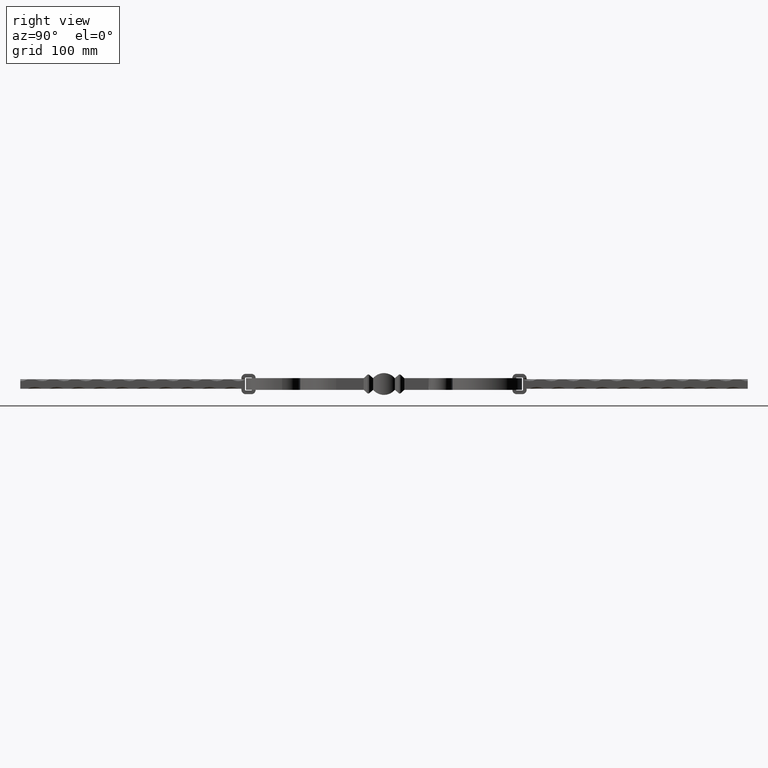
[diagram: clean part render]
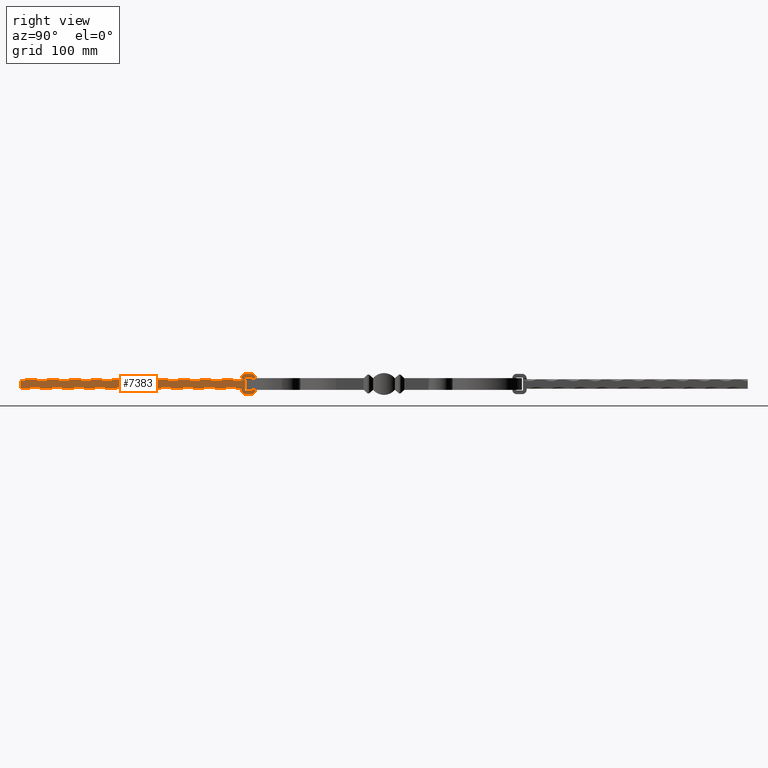
[diagram: same view with one face highlighted and labeled with its STEP entity id]
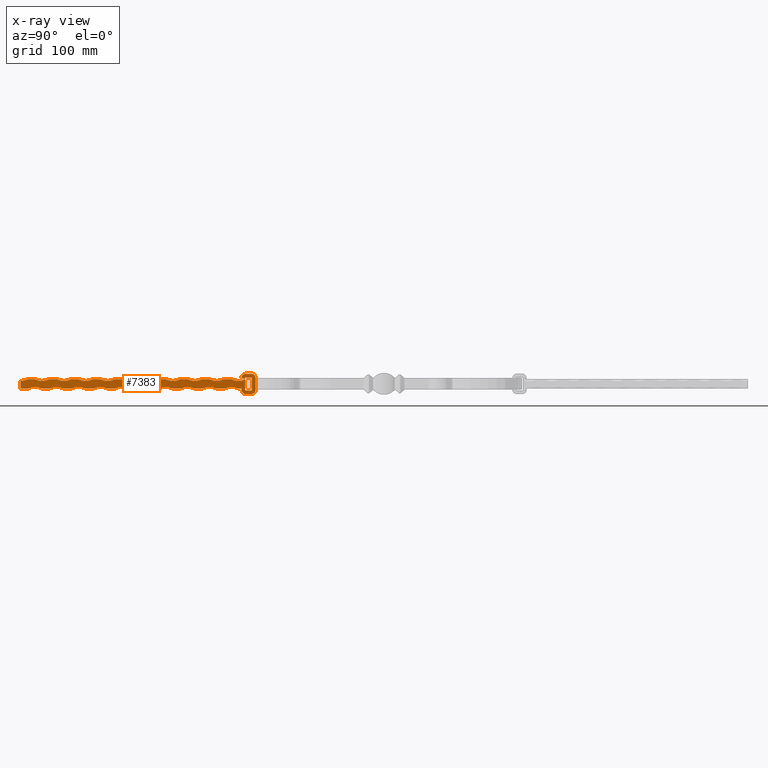
[diagram: x-ray of the same camera — body ghosted, the highlighted face saturated]
A machine part, right view. The second image highlights one B-rep face of the part: STEP entity #7383.
The next image is the same camera in x-ray: the body ghosted, the highlighted face saturated — about 0% of this face is hidden behind the body in this view.
In plain terms, the highlighted planar face has unit normal (1, 0, 0).
Its self-contained STEP definition (entity closure, byte-faithful):
#13 = EDGE_CURVE ( 'NONE', #17045, #5114, #5605, .T. ) ;
#35 = DIRECTION ( 'NONE',  ( 0.000000000000000000, 0.000000000000000000, -1.000000000000000000 ) ) ;
#87 = DIRECTION ( 'NONE',  ( -0.000000000000000000, 1.000000000000000000, -0.000000000000000000 ) ) ;
#95 = CIRCLE ( 'NONE', #11120, 21.25000000000003197 ) ;
#133 = EDGE_CURVE ( 'NONE', #16079, #325, #7344, .T. ) ;
#171 = CARTESIAN_POINT ( 'NONE',  ( 6.500000000000000888, -219.9999999999999716, 6.500000000000000888 ) ) ;
#203 = DIRECTION ( 'NONE',  ( 0.000000000000000000, 0.000000000000000000, -1.000000000000000000 ) ) ;
#234 = VERTEX_POINT ( 'NONE', #6979 ) ;
#283 = DIRECTION ( 'NONE',  ( 0.000000000000000000, 0.000000000000000000, -1.000000000000000000 ) ) ;
#325 = VERTEX_POINT ( 'NONE', #9972 ) ;
#344 = AXIS2_PLACEMENT_3D ( 'NONE', #17200, #12982, #203 ) ;
#448 = AXIS2_PLACEMENT_3D ( 'NONE', #16686, #2578, #11030 ) ;
#489 = EDGE_CURVE ( 'NONE', #14386, #7853, #11550, .T. ) ;
#531 = EDGE_CURVE ( 'NONE', #11298, #1722, #3411, .T. ) ;
#609 = PLANE ( 'NONE',  #14590 ) ;
#642 = ORIENTED_EDGE ( 'NONE', *, *, #12484, .T. ) ;
#720 = VECTOR ( 'NONE', #12941, 1000.000000000000000 ) ;
#724 = DIRECTION ( 'NONE',  ( 0.000000000000000000, 0.000000000000000000, -1.000000000000000000 ) ) ;
#798 = ORIENTED_EDGE ( 'NONE', *, *, #15753, .T. ) ;
#805 = CARTESIAN_POINT ( 'NONE',  ( 6.499999999999999112, -400.0000000000000000, -6.500000000000001776 ) ) ;
#845 = DIRECTION ( 'NONE',  ( 0.000000000000000000, 0.000000000000000000, -1.000000000000000000 ) ) ;
#859 = VECTOR ( 'NONE', #11815, 1000.000000000000000 ) ;
#969 = CARTESIAN_POINT ( 'NONE',  ( 6.500000000000000888, -199.9999999999999432, 25.25000000000002842 ) ) ;
#970 = CARTESIAN_POINT ( 'NONE',  ( 6.500000000000000000, -182.4038591061661805, -7.999999999999996447 ) ) ;
#979 = DIRECTION ( 'NONE',  ( -1.000000000000000000, -0.000000000000000000, -0.000000000000000000 ) ) ;
#1005 = EDGE_CURVE ( 'NONE', #234, #14254, #11531, .T. ) ;
#1026 = CARTESIAN_POINT ( 'NONE',  ( 6.500000000000000000, -190.0000000000000000, -7.999999999999996447 ) ) ;
#1031 = CARTESIAN_POINT ( 'NONE',  ( 6.500000000000000000, -191.0000000000000000, -7.999999999999996447 ) ) ;
#1035 = CARTESIAN_POINT ( 'NONE',  ( 6.500000000000000888, -290.0000000000000000, 25.25000000000002842 ) ) ;
#1046 = LINE ( 'NONE', #14495, #2365 ) ;
#1091 = EDGE_CURVE ( 'NONE', #8432, #17689, #11980, .T. ) ;
#1138 = LINE ( 'NONE', #15824, #4433 ) ;
#1168 = VERTEX_POINT ( 'NONE', #16078 ) ;
#1191 = VECTOR ( 'NONE', #9612, 1000.000000000000000 ) ;
#1212 = CARTESIAN_POINT ( 'NONE',  ( 6.499999999999999112, -439.9999999999999432, -6.500000000000001776 ) ) ;
#1225 = DIRECTION ( 'NONE',  ( -0.000000000000000000, 1.000000000000000000, -0.000000000000000000 ) ) ;
#1252 = CARTESIAN_POINT ( 'NONE',  ( 6.500000000000000000, -191.0000000000000000, -7.999999999999996447 ) ) ;
#1254 = EDGE_CURVE ( 'NONE', #6298, #11298, #2917, .T. ) ;
#1281 = DIRECTION ( 'NONE',  ( -1.000000000000000000, -0.000000000000000000, -0.000000000000000000 ) ) ;
#1298 = AXIS2_PLACEMENT_3D ( 'NONE', #10494, #13108, #14617 ) ;
#1318 = CARTESIAN_POINT ( 'NONE',  ( 6.500000000000000888, -279.9999999999999432, 6.500000000000000888 ) ) ;
#1356 = CARTESIAN_POINT ( 'NONE',  ( 6.500000000000000000, -196.0000000000000000, -6.499999999999999112 ) ) ;
#1384 = DIRECTION ( 'NONE',  ( -1.000000000000000000, -0.000000000000000000, -0.000000000000000000 ) ) ;
#1402 = VECTOR ( 'NONE', #6998, 1000.000000000000000 ) ;
#1431 = CIRCLE ( 'NONE', #15427, 21.25000000000003197 ) ;
#1435 = CARTESIAN_POINT ( 'NONE',  ( 6.500000000000000888, -339.9999999999999432, 6.500000000000000888 ) ) ;
#1449 = EDGE_CURVE ( 'NONE', #8432, #14254, #12648, .T. ) ;
#1475 = VERTEX_POINT ( 'NONE', #16818 ) ;
#1523 = EDGE_CURVE ( 'NONE', #8676, #1763, #2705, .T. ) ;
#1611 = EDGE_LOOP ( 'NONE', ( #13309, #6401, #5413, #2373, #12907, #14793, #642, #12937, #7532, #4774, #8860, #12151, #9654, #13095, #16212, #12329, #7815, #4599, #14968, #17665, #12158, #14941, #2393, #11781, #17215, #18000, #4907, #17334, #10276, #7272, #8463, #11679, #15737, #15053, #8181, #11391, #13188, #10351, #798, #8345, #15431, #17988, #15182, #2220, #8755, #5553, #10575, #5005, #11780, #10689, #6913, #11741, #7497, #17813, #2573, #7607, #10622, #17034, #5172, #11934, #12679 ) ) ;
#1690 = CARTESIAN_POINT ( 'NONE',  ( 6.499999999999999112, -219.9999999999999716, -6.500000000000001776 ) ) ;
#1722 = VERTEX_POINT ( 'NONE', #15727 ) ;
#1737 = CARTESIAN_POINT ( 'NONE',  ( 6.500000000000000888, -459.9999999999999432, 6.500000000000000888 ) ) ;
#1742 = CARTESIAN_POINT ( 'NONE',  ( 6.499999999999999112, -300.0000000000000000, -25.25000000000003908 ) ) ;
#1758 = EDGE_CURVE ( 'NONE', #4401, #9885, #5786, .T. ) ;
#1763 = VERTEX_POINT ( 'NONE', #13971 ) ;
#1775 = VERTEX_POINT ( 'NONE', #14037 ) ;
#1779 = CARTESIAN_POINT ( 'NONE',  ( 6.500000000000000000, -196.0000000000000000, -7.999999999999994671 ) ) ;
#1852 = CARTESIAN_POINT ( 'NONE',  ( 6.500000000000000000, -182.4038591061661805, -14.00000000000000178 ) ) ;
#1861 = EDGE_CURVE ( 'NONE', #16717, #11089, #17296, .T. ) ;
#1965 = CARTESIAN_POINT ( 'NONE',  ( 6.500000000000000888, -500.0000000000000000, 6.500000000000000888 ) ) ;
#2018 = VECTOR ( 'NONE', #18318, 1000.000000000000000 ) ;
#2032 = CARTESIAN_POINT ( 'NONE',  ( 6.499999999999999112, -500.0000000000000000, -6.499999999999999112 ) ) ;
#2046 = LINE ( 'NONE', #13170, #2700 ) ;
#2115 = CIRCLE ( 'NONE', #344, 1.000000000000000888 ) ;
#2153 = CARTESIAN_POINT ( 'NONE',  ( 6.499999999999999112, -209.9999999999999716, -25.25000000000003908 ) ) ;
#2180 = VECTOR ( 'NONE', #3508, 1000.000000000000000 ) ;
#2208 = CARTESIAN_POINT ( 'NONE',  ( 6.500000000000000888, -195.9684936844944332, 8.614070955305894728 ) ) ;
#2220 = ORIENTED_EDGE ( 'NONE', *, *, #2441, .F. ) ;
#2250 = DIRECTION ( 'NONE',  ( 0.000000000000000000, 0.000000000000000000, -1.000000000000000000 ) ) ;
#2268 = DIRECTION ( 'NONE',  ( 0.000000000000000000, 0.000000000000000000, -1.000000000000000000 ) ) ;
#2324 = EDGE_CURVE ( 'NONE', #6621, #1475, #12381, .T. ) ;
#2365 = VECTOR ( 'NONE', #11722, 1000.000000000000000 ) ;
#2373 = ORIENTED_EDGE ( 'NONE', *, *, #12468, .F. ) ;
#2390 = DIRECTION ( 'NONE',  ( 0.000000000000000000, 0.000000000000000000, -1.000000000000000000 ) ) ;
#2393 = ORIENTED_EDGE ( 'NONE', *, *, #2863, .T. ) ;
#2441 = EDGE_CURVE ( 'NONE', #18238, #9808, #10846, .T. ) ;
#2469 = CARTESIAN_POINT ( 'NONE',  ( 6.500000000000000888, -500.0000000000000000, 6.500000000000000888 ) ) ;
#2483 = EDGE_CURVE ( 'NONE', #17567, #14969, #1138, .T. ) ;
#2573 = ORIENTED_EDGE ( 'NONE', *, *, #13491, .T. ) ;
#2578 = DIRECTION ( 'NONE',  ( -1.000000000000000000, -0.000000000000000000, -0.000000000000000000 ) ) ;
#2601 = DIRECTION ( 'NONE',  ( -1.000000000000000000, -0.000000000000000000, -0.000000000000000000 ) ) ;
#2689 = CARTESIAN_POINT ( 'NONE',  ( 6.499999999999999112, -500.0000000000000000, -6.499999999999999112 ) ) ;
#2700 = VECTOR ( 'NONE', #11976, 1000.000000000000000 ) ;
#2705 = CIRCLE ( 'NONE', #448, 21.25000000000003197 ) ;
#2714 = AXIS2_PLACEMENT_3D ( 'NONE', #14203, #9958, #6736 ) ;
#2836 = EDGE_CURVE ( 'NONE', #11089, #5912, #9938, .T. ) ;
#2856 = VERTEX_POINT ( 'NONE', #16791 ) ;
#2863 = EDGE_CURVE ( 'NONE', #15268, #1775, #8394, .T. ) ;
#2897 = AXIS2_PLACEMENT_3D ( 'NONE', #970, #14952, #7865 ) ;
#2899 = FACE_OUTER_BOUND ( 'NONE', #1611, .T. ) ;
#2917 = CIRCLE ( 'NONE', #2897, 6.000000000000005329 ) ;
#2930 = VERTEX_POINT ( 'NONE', #5705 ) ;
#3008 = DIRECTION ( 'NONE',  ( -0.000000000000000000, 1.000000000000000000, -0.000000000000000000 ) ) ;
#3044 = AXIS2_PLACEMENT_3D ( 'NONE', #9271, #3847, #13749 ) ;
#3088 = DIRECTION ( 'NONE',  ( 0.000000000000000000, 0.000000000000000000, -1.000000000000000000 ) ) ;
#3116 = VERTEX_POINT ( 'NONE', #4893 ) ;
#3121 = CARTESIAN_POINT ( 'NONE',  ( 6.500000000000000888, -300.0000000000000000, 6.500000000000000888 ) ) ;
#3151 = EDGE_CURVE ( 'NONE', #13130, #11223, #11480, .T. ) ;
#3160 = VECTOR ( 'NONE', #5930, 1000.000000000000000 ) ;
#3222 = VERTEX_POINT ( 'NONE', #5132 ) ;
#3245 = DIRECTION ( 'NONE',  ( -0.000000000000000000, 1.000000000000000000, -0.000000000000000000 ) ) ;
#3258 = DIRECTION ( 'NONE',  ( -0.000000000000000000, 1.000000000000000000, -0.000000000000000000 ) ) ;
#3266 = AXIS2_PLACEMENT_3D ( 'NONE', #8237, #18260, #12640 ) ;
#3278 = LINE ( 'NONE', #15966, #17429 ) ;
#3411 = LINE ( 'NONE', #1852, #14255 ) ;
#3445 = CARTESIAN_POINT ( 'NONE',  ( 6.499999999999999112, -459.9999999999999432, -6.500000000000001776 ) ) ;
#3504 = CARTESIAN_POINT ( 'NONE',  ( 6.500000000000000000, -190.0000000000000000, 9.000000000000001776 ) ) ;
#3508 = DIRECTION ( 'NONE',  ( -0.000000000000000000, 1.000000000000000000, -0.000000000000000000 ) ) ;
#3549 = EDGE_CURVE ( 'NONE', #1722, #18238, #4625, .T. ) ;
#3629 = CIRCLE ( 'NONE', #6249, 21.25000000000003197 ) ;
#3708 = LINE ( 'NONE', #2032, #2180 ) ;
#3741 = CARTESIAN_POINT ( 'NONE',  ( 6.500000000000000888, -240.0000000000000000, 6.500000000000000888 ) ) ;
#3820 = CIRCLE ( 'NONE', #11248, 21.25000000000003553 ) ;
#3847 = DIRECTION ( 'NONE',  ( -1.000000000000000000, -0.000000000000000000, -0.000000000000000000 ) ) ;
#3906 = EDGE_CURVE ( 'NONE', #16709, #12035, #5734, .T. ) ;
#3988 = CARTESIAN_POINT ( 'NONE',  ( 6.500000000000000000, -176.4038591061661805, 8.000000000000000000 ) ) ;
#4023 = CARTESIAN_POINT ( 'NONE',  ( 6.500000000000000000, -182.4038591061661805, 13.99999999999999822 ) ) ;
#4027 = EDGE_CURVE ( 'NONE', #4401, #4323, #12575, .T. ) ;
#4036 = CIRCLE ( 'NONE', #15797, 21.25000000000003553 ) ;
#4052 = DIRECTION ( 'NONE',  ( -1.000000000000000000, -0.000000000000000000, -0.000000000000000000 ) ) ;
#4152 = CARTESIAN_POINT ( 'NONE',  ( 6.500000000000000000, -196.0000000000000000, -7.999999999999994671 ) ) ;
#4158 = DIRECTION ( 'NONE',  ( -0.000000000000000000, 1.000000000000000000, -0.000000000000000000 ) ) ;
#4280 = VECTOR ( 'NONE', #11998, 1000.000000000000000 ) ;
#4323 = VERTEX_POINT ( 'NONE', #5503 ) ;
#4353 = CARTESIAN_POINT ( 'NONE',  ( 6.499999999999999112, -500.0000000000000000, -6.499999999999999112 ) ) ;
#4401 = VERTEX_POINT ( 'NONE', #8272 ) ;
#4416 = CARTESIAN_POINT ( 'NONE',  ( 6.500000000000000888, -191.0000000000000000, 5.999999999999970690 ) ) ;
#4433 = VECTOR ( 'NONE', #3245, 1000.000000000000000 ) ;
#4532 = VERTEX_POINT ( 'NONE', #4629 ) ;
#4548 = DIRECTION ( 'NONE',  ( -1.000000000000000000, -0.000000000000000000, -0.000000000000000000 ) ) ;
#4570 = LINE ( 'NONE', #14580, #17647 ) ;
#4599 = ORIENTED_EDGE ( 'NONE', *, *, #7763, .F. ) ;
#4625 = CIRCLE ( 'NONE', #9887, 6.000000000000003553 ) ;
#4629 = CARTESIAN_POINT ( 'NONE',  ( 6.499999999999999112, -260.0000000000000000, -6.500000000000001776 ) ) ;
#4725 = DIRECTION ( 'NONE',  ( 0.000000000000000000, 0.000000000000000000, -1.000000000000000000 ) ) ;
#4774 = ORIENTED_EDGE ( 'NONE', *, *, #1091, .F. ) ;
#4776 = VERTEX_POINT ( 'NONE', #9727 ) ;
#4794 = VERTEX_POINT ( 'NONE', #3988 ) ;
#4842 = CARTESIAN_POINT ( 'NONE',  ( 6.499999999999999112, -449.9999999999999432, -25.25000000000003908 ) ) ;
#4893 = CARTESIAN_POINT ( 'NONE',  ( 6.499999999999999112, -430.0000000000000000, -6.500000000000001776 ) ) ;
#4907 = ORIENTED_EDGE ( 'NONE', *, *, #13805, .T. ) ;
#4910 = DIRECTION ( 'NONE',  ( 0.000000000000000000, -1.000000000000000000, -2.283690495242095148E-16 ) ) ;
#4949 = DIRECTION ( 'NONE',  ( -1.000000000000000000, -0.000000000000000000, -0.000000000000000000 ) ) ;
#5005 = ORIENTED_EDGE ( 'NONE', *, *, #7362, .F. ) ;
#5058 = DIRECTION ( 'NONE',  ( -0.000000000000000000, 1.000000000000000000, -0.000000000000000000 ) ) ;
#5091 = EDGE_CURVE ( 'NONE', #12035, #15497, #11431, .T. ) ;
#5114 = VERTEX_POINT ( 'NONE', #14596 ) ;
#5118 = DIRECTION ( 'NONE',  ( -1.000000000000000000, -0.000000000000000000, -0.000000000000000000 ) ) ;
#5132 = CARTESIAN_POINT ( 'NONE',  ( 6.500000000000000000, -190.0000000000000000, 14.00000000000000533 ) ) ;
#5157 = DIRECTION ( 'NONE',  ( -1.000000000000000000, -0.000000000000000000, -0.000000000000000000 ) ) ;
#5172 = ORIENTED_EDGE ( 'NONE', *, *, #489, .T. ) ;
#5281 = DIRECTION ( 'NONE',  ( -1.000000000000000000, -0.000000000000000000, -0.000000000000000000 ) ) ;
#5413 = ORIENTED_EDGE ( 'NONE', *, *, #14605, .T. ) ;
#5462 = DIRECTION ( 'NONE',  ( 0.000000000000000000, 0.000000000000000000, -1.000000000000000000 ) ) ;
#5502 = EDGE_CURVE ( 'NONE', #5516, #10519, #4570, .T. ) ;
#5503 = CARTESIAN_POINT ( 'NONE',  ( 6.500000000000000888, -420.0000000000000000, 6.500000000000000888 ) ) ;
#5515 = AXIS2_PLACEMENT_3D ( 'NONE', #10557, #1281, #11277 ) ;
#5516 = VERTEX_POINT ( 'NONE', #13137 ) ;
#5553 = ORIENTED_EDGE ( 'NONE', *, *, #531, .F. ) ;
#5605 = CIRCLE ( 'NONE', #6418, 1.000000000000000888 ) ;
#5607 = VECTOR ( 'NONE', #17464, 1000.000000000000000 ) ;
#5618 = DIRECTION ( 'NONE',  ( 0.000000000000000000, 0.000000000000000000, -1.000000000000000000 ) ) ;
#5628 = LINE ( 'NONE', #2469, #6058 ) ;
#5630 = CARTESIAN_POINT ( 'NONE',  ( 6.499999999999999112, -370.0000000000000000, -6.500000000000001776 ) ) ;
#5664 = CIRCLE ( 'NONE', #17841, 21.25000000000003197 ) ;
#5689 = VERTEX_POINT ( 'NONE', #3445 ) ;
#5695 = CIRCLE ( 'NONE', #17372, 21.25000000000003553 ) ;
#5705 = CARTESIAN_POINT ( 'NONE',  ( 6.499999999999999112, -410.0000000000000000, -6.500000000000001776 ) ) ;
#5730 = DIRECTION ( 'NONE',  ( 0.000000000000000000, 0.000000000000000000, -1.000000000000000000 ) ) ;
#5734 = LINE ( 'NONE', #4353, #9683 ) ;
#5774 = CARTESIAN_POINT ( 'NONE',  ( 6.500000000000000000, -191.0000000000000000, -7.999999999999996447 ) ) ;
#5782 = DIRECTION ( 'NONE',  ( 0.000000000000000000, 0.000000000000000000, -1.000000000000000000 ) ) ;
#5786 = CIRCLE ( 'NONE', #9998, 21.25000000000003197 ) ;
#5798 = AXIS2_PLACEMENT_3D ( 'NONE', #8740, #10156, #8682 ) ;
#5800 = DIRECTION ( 'NONE',  ( -1.000000000000000000, -0.000000000000000000, -0.000000000000000000 ) ) ;
#5859 = EDGE_CURVE ( 'NONE', #1475, #9808, #11619, .T. ) ;
#5865 = CARTESIAN_POINT ( 'NONE',  ( 6.499999999999999112, -290.0000000000000000, -6.500000000000001776 ) ) ;
#5902 = CARTESIAN_POINT ( 'NONE',  ( 6.500000000000000888, -449.9999999999999432, 6.500000000000000888 ) ) ;
#5912 = VERTEX_POINT ( 'NONE', #17268 ) ;
#5930 = DIRECTION ( 'NONE',  ( -0.000000000000000000, 1.000000000000000000, -0.000000000000000000 ) ) ;
#6058 = VECTOR ( 'NONE', #10859, 1000.000000000000000 ) ;
#6119 = EDGE_CURVE ( 'NONE', #12271, #4794, #9401, .T. ) ;
#6139 = CARTESIAN_POINT ( 'NONE',  ( 6.500000000000000000, -182.4038591061661805, 7.999999999999998224 ) ) ;
#6249 = AXIS2_PLACEMENT_3D ( 'NONE', #8354, #16676, #18143 ) ;
#6269 = DIRECTION ( 'NONE',  ( 0.000000000000000000, -1.000000000000000000, 4.567380990484190297E-16 ) ) ;
#6298 = VERTEX_POINT ( 'NONE', #14929 ) ;
#6315 = CARTESIAN_POINT ( 'NONE',  ( 6.499999999999999112, -500.0000000000000000, -6.499999999999999112 ) ) ;
#6401 = ORIENTED_EDGE ( 'NONE', *, *, #11160, .F. ) ;
#6418 = AXIS2_PLACEMENT_3D ( 'NONE', #12684, #15432, #35 ) ;
#6427 = LINE ( 'NONE', #5774, #16189 ) ;
#6463 = EDGE_CURVE ( 'NONE', #234, #10519, #7189, .T. ) ;
#6473 = LINE ( 'NONE', #6315, #4280 ) ;
#6569 = CARTESIAN_POINT ( 'NONE',  ( 6.500000000000000888, -229.9999999999999716, 25.25000000000002842 ) ) ;
#6579 = VERTEX_POINT ( 'NONE', #1318 ) ;
#6585 = AXIS2_PLACEMENT_3D ( 'NONE', #1742, #4548, #15904 ) ;
#6621 = VERTEX_POINT ( 'NONE', #1690 ) ;
#6628 = CARTESIAN_POINT ( 'NONE',  ( 6.500000000000000000, -182.4038591061661805, 9.000000000000001776 ) ) ;
#6632 = VECTOR ( 'NONE', #15369, 1000.000000000000000 ) ;
#6736 = DIRECTION ( 'NONE',  ( 0.000000000000000000, 0.000000000000000000, -1.000000000000000000 ) ) ;
#6913 = ORIENTED_EDGE ( 'NONE', *, *, #14336, .F. ) ;
#6942 = CARTESIAN_POINT ( 'NONE',  ( 6.499999999999999112, -500.0000000000000000, -6.499999999999999112 ) ) ;
#6979 = CARTESIAN_POINT ( 'NONE',  ( 6.500000000000000888, -370.0000000000000000, 6.500000000000000888 ) ) ;
#6998 = DIRECTION ( 'NONE',  ( -0.000000000000000000, 1.000000000000000000, -0.000000000000000000 ) ) ;
#7072 = AXIS2_PLACEMENT_3D ( 'NONE', #15109, #2601, #9867 ) ;
#7147 = EDGE_CURVE ( 'NONE', #14277, #16717, #11467, .T. ) ;
#7189 = CIRCLE ( 'NONE', #7072, 21.25000000000003197 ) ;
#7255 = CARTESIAN_POINT ( 'NONE',  ( 6.499999999999999112, -380.0000000000000000, -6.500000000000001776 ) ) ;
#7272 = ORIENTED_EDGE ( 'NONE', *, *, #9800, .T. ) ;
#7344 = CIRCLE ( 'NONE', #10322, 1.000000000000001776 ) ;
#7359 = VERTEX_POINT ( 'NONE', #9041 ) ;
#7362 = EDGE_CURVE ( 'NONE', #4794, #6298, #7954, .T. ) ;
#7383 = ADVANCED_FACE ( 'NONE', ( #2899 ), #609, .T. ) ;
#7497 = ORIENTED_EDGE ( 'NONE', *, *, #17314, .T. ) ;
#7521 = EDGE_CURVE ( 'NONE', #325, #14434, #16844, .T. ) ;
#7532 = ORIENTED_EDGE ( 'NONE', *, *, #11452, .T. ) ;
#7557 = LINE ( 'NONE', #8540, #720 ) ;
#7607 = ORIENTED_EDGE ( 'NONE', *, *, #133, .T. ) ;
#7715 = VECTOR ( 'NONE', #3008, 1000.000000000000000 ) ;
#7749 = DIRECTION ( 'NONE',  ( -1.000000000000000000, -0.000000000000000000, -0.000000000000000000 ) ) ;
#7763 = EDGE_CURVE ( 'NONE', #13130, #9885, #12835, .T. ) ;
#7815 = ORIENTED_EDGE ( 'NONE', *, *, #1758, .T. ) ;
#7853 = VERTEX_POINT ( 'NONE', #15105 ) ;
#7865 = DIRECTION ( 'NONE',  ( 0.000000000000000000, 0.000000000000000000, -1.000000000000000000 ) ) ;
#7870 = CARTESIAN_POINT ( 'NONE',  ( 6.500000000000000888, -500.0000000000000000, 4.000000000000017764 ) ) ;
#7954 = LINE ( 'NONE', #17469, #10400 ) ;
#8096 = DIRECTION ( 'NONE',  ( -0.000000000000000000, 1.000000000000000000, -0.000000000000000000 ) ) ;
#8181 = ORIENTED_EDGE ( 'NONE', *, *, #3906, .T. ) ;
#8200 = LINE ( 'NONE', #6942, #1402 ) ;
#8237 = CARTESIAN_POINT ( 'NONE',  ( 6.499999999999999112, -420.0000000000000000, -25.25000000000003908 ) ) ;
#8255 = VECTOR ( 'NONE', #87, 1000.000000000000000 ) ;
#8267 = VECTOR ( 'NONE', #5058, 1000.000000000000000 ) ;
#8272 = CARTESIAN_POINT ( 'NONE',  ( 6.500000000000000888, -429.9999999999999432, 6.500000000000000888 ) ) ;
#8301 = LINE ( 'NONE', #16812, #13627 ) ;
#8345 = ORIENTED_EDGE ( 'NONE', *, *, #15470, .T. ) ;
#8354 = CARTESIAN_POINT ( 'NONE',  ( 6.499999999999992895, -500.0000000000000000, 25.25000000000004974 ) ) ;
#8394 = LINE ( 'NONE', #14197, #2018 ) ;
#8432 = VERTEX_POINT ( 'NONE', #1435 ) ;
#8457 = AXIS2_PLACEMENT_3D ( 'NONE', #13599, #5118, #15038 ) ;
#8463 = ORIENTED_EDGE ( 'NONE', *, *, #7147, .T. ) ;
#8540 = CARTESIAN_POINT ( 'NONE',  ( 6.499999999999999112, -500.0000000000000000, -6.499999999999999112 ) ) ;
#8676 = VERTEX_POINT ( 'NONE', #2208 ) ;
#8682 = DIRECTION ( 'NONE',  ( 0.000000000000000000, 0.000000000000000000, -1.000000000000000000 ) ) ;
#8740 = CARTESIAN_POINT ( 'NONE',  ( 6.499999999999999112, -329.9999999999999432, -25.25000000000003908 ) ) ;
#8755 = ORIENTED_EDGE ( 'NONE', *, *, #3549, .F. ) ;
#8860 = ORIENTED_EDGE ( 'NONE', *, *, #1449, .T. ) ;
#9041 = CARTESIAN_POINT ( 'NONE',  ( 6.500000000000000888, -209.9999999999999716, 6.500000000000000888 ) ) ;
#9271 = CARTESIAN_POINT ( 'NONE',  ( 6.500000000000000888, -410.0000000000000000, 25.25000000000002842 ) ) ;
#9303 = CARTESIAN_POINT ( 'NONE',  ( 6.500000000000000000, -182.4038591061661805, -14.00000000000000178 ) ) ;
#9401 = CIRCLE ( 'NONE', #2714, 6.000000000000002665 ) ;
#9456 = DIRECTION ( 'NONE',  ( 1.000000000000000000, 0.000000000000000000, 0.000000000000000000 ) ) ;
#9504 = DIRECTION ( 'NONE',  ( -1.000000000000000000, -0.000000000000000000, -0.000000000000000000 ) ) ;
#9515 = CARTESIAN_POINT ( 'NONE',  ( 6.499999999999999112, -500.0000000000000000, -6.499999999999999112 ) ) ;
#9612 = DIRECTION ( 'NONE',  ( 0.000000000000000000, 0.000000000000000000, 1.000000000000000000 ) ) ;
#9654 = ORIENTED_EDGE ( 'NONE', *, *, #6463, .T. ) ;
#9683 = VECTOR ( 'NONE', #9839, 1000.000000000000000 ) ;
#9727 = CARTESIAN_POINT ( 'NONE',  ( 6.500000000000000888, -249.9999999999999716, 6.500000000000000888 ) ) ;
#9774 = VERTEX_POINT ( 'NONE', #171 ) ;
#9791 = VERTEX_POINT ( 'NONE', #4416 ) ;
#9800 = EDGE_CURVE ( 'NONE', #13996, #14277, #5695, .T. ) ;
#9808 = VERTEX_POINT ( 'NONE', #1356 ) ;
#9839 = DIRECTION ( 'NONE',  ( -0.000000000000000000, 1.000000000000000000, -0.000000000000000000 ) ) ;
#9867 = DIRECTION ( 'NONE',  ( 0.000000000000000000, 0.000000000000000000, -1.000000000000000000 ) ) ;
#9885 = VERTEX_POINT ( 'NONE', #5902 ) ;
#9887 = AXIS2_PLACEMENT_3D ( 'NONE', #11596, #10173, #10106 ) ;
#9916 = CARTESIAN_POINT ( 'NONE',  ( 6.500000000000000888, -319.9999999999999432, 25.25000000000002842 ) ) ;
#9938 = LINE ( 'NONE', #2689, #15962 ) ;
#9958 = DIRECTION ( 'NONE',  ( -1.000000000000000000, -0.000000000000000000, -0.000000000000000000 ) ) ;
#9964 = EDGE_CURVE ( 'NONE', #5689, #18136, #14804, .T. ) ;
#9972 = CARTESIAN_POINT ( 'NONE',  ( 6.500000000000000000, -181.4038591061661805, 7.999999999999996447 ) ) ;
#9998 = AXIS2_PLACEMENT_3D ( 'NONE', #16880, #1384, #5618 ) ;
#10026 = DIRECTION ( 'NONE',  ( -1.000000000000000000, -0.000000000000000000, -0.000000000000000000 ) ) ;
#10033 = EDGE_CURVE ( 'NONE', #14676, #6621, #3708, .T. ) ;
#10106 = DIRECTION ( 'NONE',  ( 0.000000000000000000, 0.000000000000000000, -1.000000000000000000 ) ) ;
#10113 = EDGE_CURVE ( 'NONE', #5516, #4323, #14568, .T. ) ;
#10119 = CARTESIAN_POINT ( 'NONE',  ( 6.499999999999999112, -500.0000000000000000, -6.499999999999999112 ) ) ;
#10156 = DIRECTION ( 'NONE',  ( -1.000000000000000000, -0.000000000000000000, -0.000000000000000000 ) ) ;
#10173 = DIRECTION ( 'NONE',  ( -1.000000000000000000, -0.000000000000000000, -0.000000000000000000 ) ) ;
#10239 = AXIS2_PLACEMENT_3D ( 'NONE', #2153, #4052, #5462 ) ;
#10258 = CARTESIAN_POINT ( 'NONE',  ( 6.499999999999999112, -310.0000000000000000, -6.500000000000001776 ) ) ;
#10276 = ORIENTED_EDGE ( 'NONE', *, *, #13608, .T. ) ;
#10278 = EDGE_CURVE ( 'NONE', #18182, #11223, #3278, .T. ) ;
#10322 = AXIS2_PLACEMENT_3D ( 'NONE', #6139, #7749, #724 ) ;
#10351 = ORIENTED_EDGE ( 'NONE', *, *, #11790, .T. ) ;
#10400 = VECTOR ( 'NONE', #17536, 1000.000000000000000 ) ;
#10494 = CARTESIAN_POINT ( 'NONE',  ( 6.500000000000000888, -260.0000000000000000, 25.25000000000002842 ) ) ;
#10519 = VERTEX_POINT ( 'NONE', #11446 ) ;
#10557 = CARTESIAN_POINT ( 'NONE',  ( 6.499999999999999112, -360.0000000000000000, -25.25000000000003908 ) ) ;
#10575 = ORIENTED_EDGE ( 'NONE', *, *, #1254, .F. ) ;
#10622 = ORIENTED_EDGE ( 'NONE', *, *, #7521, .T. ) ;
#10649 = DIRECTION ( 'NONE',  ( 0.000000000000000000, 0.000000000000000000, -1.000000000000000000 ) ) ;
#10658 = CARTESIAN_POINT ( 'NONE',  ( 6.500000000000000000, -182.4038591061661805, -7.999999999999996447 ) ) ;
#10689 = ORIENTED_EDGE ( 'NONE', *, *, #11510, .F. ) ;
#10846 = LINE ( 'NONE', #1779, #14196 ) ;
#10859 = DIRECTION ( 'NONE',  ( -0.000000000000000000, 1.000000000000000000, -0.000000000000000000 ) ) ;
#10883 = CARTESIAN_POINT ( 'NONE',  ( 6.499999999999992895, -490.0000000000000000, 6.500000000000018652 ) ) ;
#10932 = CIRCLE ( 'NONE', #1298, 21.25000000000003197 ) ;
#11026 = CARTESIAN_POINT ( 'NONE',  ( 6.499999999999999112, -229.9999999999999716, -6.500000000000001776 ) ) ;
#11030 = DIRECTION ( 'NONE',  ( 0.000000000000000000, 0.000000000000000000, -1.000000000000000000 ) ) ;
#11089 = VERTEX_POINT ( 'NONE', #11369 ) ;
#11120 = AXIS2_PLACEMENT_3D ( 'NONE', #6569, #5281, #2390 ) ;
#11160 = EDGE_CURVE ( 'NONE', #9774, #7359, #1046, .T. ) ;
#11177 = CARTESIAN_POINT ( 'NONE',  ( 6.499999999999999112, -500.0000000000000000, -6.499999999999999112 ) ) ;
#11223 = VERTEX_POINT ( 'NONE', #14736 ) ;
#11248 = AXIS2_PLACEMENT_3D ( 'NONE', #17869, #9504, #2250 ) ;
#11277 = DIRECTION ( 'NONE',  ( 0.000000000000000000, 0.000000000000000000, -1.000000000000000000 ) ) ;
#11298 = VERTEX_POINT ( 'NONE', #9303 ) ;
#11369 = CARTESIAN_POINT ( 'NONE',  ( 6.499999999999999112, -350.0000000000000000, -6.500000000000001776 ) ) ;
#11391 = ORIENTED_EDGE ( 'NONE', *, *, #5091, .T. ) ;
#11431 = CIRCLE ( 'NONE', #6585, 21.25000000000003553 ) ;
#11446 = CARTESIAN_POINT ( 'NONE',  ( 6.500000000000000888, -390.0000000000000000, 6.500000000000000888 ) ) ;
#11452 = EDGE_CURVE ( 'NONE', #17567, #17689, #5664, .T. ) ;
#11467 = LINE ( 'NONE', #15771, #7715 ) ;
#11480 = CIRCLE ( 'NONE', #12031, 21.25000000000003197 ) ;
#11510 = EDGE_CURVE ( 'NONE', #3222, #12271, #8301, .T. ) ;
#11531 = LINE ( 'NONE', #17137, #3160 ) ;
#11550 = LINE ( 'NONE', #17475, #14700 ) ;
#11584 = CARTESIAN_POINT ( 'NONE',  ( 6.500000000000000000, -190.0000000000000000, 8.000000000000000000 ) ) ;
#11596 = CARTESIAN_POINT ( 'NONE',  ( 6.500000000000000000, -190.0000000000000000, -7.999999999999996447 ) ) ;
#11619 = LINE ( 'NONE', #9515, #15210 ) ;
#11679 = ORIENTED_EDGE ( 'NONE', *, *, #1861, .T. ) ;
#11722 = DIRECTION ( 'NONE',  ( -0.000000000000000000, 1.000000000000000000, -0.000000000000000000 ) ) ;
#11741 = ORIENTED_EDGE ( 'NONE', *, *, #1523, .T. ) ;
#11780 = ORIENTED_EDGE ( 'NONE', *, *, #6119, .F. ) ;
#11781 = ORIENTED_EDGE ( 'NONE', *, *, #16557, .T. ) ;
#11790 = EDGE_CURVE ( 'NONE', #17993, #4532, #14517, .T. ) ;
#11815 = DIRECTION ( 'NONE',  ( -0.000000000000000000, 1.000000000000000000, -0.000000000000000000 ) ) ;
#11845 = VERTEX_POINT ( 'NONE', #3741 ) ;
#11934 = ORIENTED_EDGE ( 'NONE', *, *, #12550, .T. ) ;
#11948 = CARTESIAN_POINT ( 'NONE',  ( 6.500000000000000888, -500.0000000000000000, 6.500000000000000888 ) ) ;
#11957 = CARTESIAN_POINT ( 'NONE',  ( 6.500000000000000888, -309.9999999999999432, 6.500000000000000888 ) ) ;
#11964 = VERTEX_POINT ( 'NONE', #12999 ) ;
#11976 = DIRECTION ( 'NONE',  ( -0.000000000000000000, 1.000000000000000000, -0.000000000000000000 ) ) ;
#11980 = LINE ( 'NONE', #11948, #14892 ) ;
#11998 = DIRECTION ( 'NONE',  ( -0.000000000000000000, 1.000000000000000000, -0.000000000000000000 ) ) ;
#12031 = AXIS2_PLACEMENT_3D ( 'NONE', #17807, #4949, #15112 ) ;
#12035 = VERTEX_POINT ( 'NONE', #10258 ) ;
#12151 = ORIENTED_EDGE ( 'NONE', *, *, #1005, .F. ) ;
#12158 = ORIENTED_EDGE ( 'NONE', *, *, #13388, .T. ) ;
#12218 = LINE ( 'NONE', #14070, #14490 ) ;
#12271 = VERTEX_POINT ( 'NONE', #4023 ) ;
#12329 = ORIENTED_EDGE ( 'NONE', *, *, #4027, .F. ) ;
#12376 = VECTOR ( 'NONE', #13302, 1000.000000000000000 ) ;
#12381 = CIRCLE ( 'NONE', #10239, 21.25000000000003553 ) ;
#12435 = LINE ( 'NONE', #1252, #1191 ) ;
#12468 = EDGE_CURVE ( 'NONE', #4776, #11845, #14504, .T. ) ;
#12484 = EDGE_CURVE ( 'NONE', #6579, #14969, #15175, .T. ) ;
#12507 = DIRECTION ( 'NONE',  ( -0.000000000000000000, 1.000000000000000000, -0.000000000000000000 ) ) ;
#12530 = DIRECTION ( 'NONE',  ( -1.000000000000000000, -0.000000000000000000, -0.000000000000000000 ) ) ;
#12550 = EDGE_CURVE ( 'NONE', #7853, #17051, #2115, .T. ) ;
#12575 = LINE ( 'NONE', #1965, #859 ) ;
#12607 = CARTESIAN_POINT ( 'NONE',  ( 6.499999999999999112, -319.9999999999999432, -6.500000000000001776 ) ) ;
#12640 = DIRECTION ( 'NONE',  ( 0.000000000000000000, 0.000000000000000000, -1.000000000000000000 ) ) ;
#12648 = CIRCLE ( 'NONE', #8457, 21.25000000000003197 ) ;
#12659 = CARTESIAN_POINT ( 'NONE',  ( 6.500000000000000888, -360.0000000000000000, 6.500000000000000888 ) ) ;
#12679 = ORIENTED_EDGE ( 'NONE', *, *, #16219, .T. ) ;
#12684 = CARTESIAN_POINT ( 'NONE',  ( 6.500000000000000000, -190.0000000000000000, 8.000000000000000000 ) ) ;
#12685 = CIRCLE ( 'NONE', #16250, 6.000000000000005329 ) ;
#12716 = EDGE_CURVE ( 'NONE', #4776, #2856, #10932, .T. ) ;
#12783 = CARTESIAN_POINT ( 'NONE',  ( 6.499999999999999112, -240.0000000000000000, -25.25000000000003908 ) ) ;
#12835 = LINE ( 'NONE', #17748, #12376 ) ;
#12842 = EDGE_CURVE ( 'NONE', #6579, #2856, #5628, .T. ) ;
#12907 = ORIENTED_EDGE ( 'NONE', *, *, #12716, .T. ) ;
#12937 = ORIENTED_EDGE ( 'NONE', *, *, #2483, .F. ) ;
#12941 = DIRECTION ( 'NONE',  ( -1.334402673828313339E-16, 0.000000000000000000, -1.000000000000000000 ) ) ;
#12982 = DIRECTION ( 'NONE',  ( -1.000000000000000000, -0.000000000000000000, -0.000000000000000000 ) ) ;
#12999 = CARTESIAN_POINT ( 'NONE',  ( 6.499999999999999112, -470.0000000000000000, -6.500000000000001776 ) ) ;
#13085 = CARTESIAN_POINT ( 'NONE',  ( 6.500000000000000000, -181.4038591061661805, -7.999999999999996447 ) ) ;
#13095 = ORIENTED_EDGE ( 'NONE', *, *, #5502, .F. ) ;
#13108 = DIRECTION ( 'NONE',  ( -1.000000000000000000, -0.000000000000000000, -0.000000000000000000 ) ) ;
#13130 = VERTEX_POINT ( 'NONE', #1737 ) ;
#13131 = LINE ( 'NONE', #3504, #5607 ) ;
#13137 = CARTESIAN_POINT ( 'NONE',  ( 6.500000000000000888, -399.9999999999999432, 6.500000000000000888 ) ) ;
#13170 = CARTESIAN_POINT ( 'NONE',  ( 6.499999999999999112, -500.0000000000000000, -6.499999999999999112 ) ) ;
#13188 = ORIENTED_EDGE ( 'NONE', *, *, #18315, .T. ) ;
#13302 = DIRECTION ( 'NONE',  ( -0.000000000000000000, 1.000000000000000000, -0.000000000000000000 ) ) ;
#13309 = ORIENTED_EDGE ( 'NONE', *, *, #16951, .T. ) ;
#13388 = EDGE_CURVE ( 'NONE', #18182, #14639, #3629, .T. ) ;
#13397 = EDGE_CURVE ( 'NONE', #11964, #5689, #12218, .T. ) ;
#13491 = EDGE_CURVE ( 'NONE', #5114, #16079, #13131, .T. ) ;
#13596 = AXIS2_PLACEMENT_3D ( 'NONE', #1035, #13942, #283 ) ;
#13599 = CARTESIAN_POINT ( 'NONE',  ( 6.500000000000000888, -350.0000000000000000, 25.25000000000002842 ) ) ;
#13608 = EDGE_CURVE ( 'NONE', #2930, #13996, #6473, .T. ) ;
#13627 = VECTOR ( 'NONE', #14027, 1000.000000000000000 ) ;
#13705 = CARTESIAN_POINT ( 'NONE',  ( 6.500000000000000888, -329.9999999999999432, 6.500000000000000888 ) ) ;
#13749 = DIRECTION ( 'NONE',  ( 0.000000000000000000, 0.000000000000000000, -1.000000000000000000 ) ) ;
#13805 = EDGE_CURVE ( 'NONE', #18136, #3116, #15612, .T. ) ;
#13942 = DIRECTION ( 'NONE',  ( -1.000000000000000000, -0.000000000000000000, -0.000000000000000000 ) ) ;
#13971 = CARTESIAN_POINT ( 'NONE',  ( 6.500000000000000000, -191.0000000000000000, 7.000000000000028422 ) ) ;
#13979 = AXIS2_PLACEMENT_3D ( 'NONE', #10658, #979, #845 ) ;
#13996 = VERTEX_POINT ( 'NONE', #805 ) ;
#14027 = DIRECTION ( 'NONE',  ( 0.000000000000000000, 1.000000000000000000, -9.134761980968380593E-16 ) ) ;
#14034 = CIRCLE ( 'NONE', #13979, 1.000000000000000888 ) ;
#14037 = CARTESIAN_POINT ( 'NONE',  ( 6.499999999999999112, -490.0000000000000000, -6.500000000000001776 ) ) ;
#14070 = CARTESIAN_POINT ( 'NONE',  ( 6.499999999999999112, -500.0000000000000000, -6.499999999999999112 ) ) ;
#14196 = VECTOR ( 'NONE', #17160, 1000.000000000000000 ) ;
#14197 = CARTESIAN_POINT ( 'NONE',  ( 6.499999999999999112, -500.0000000000000000, -6.499999999999999112 ) ) ;
#14203 = CARTESIAN_POINT ( 'NONE',  ( 6.500000000000000000, -182.4038591061661805, 7.999999999999998224 ) ) ;
#14254 = VERTEX_POINT ( 'NONE', #12659 ) ;
#14255 = VECTOR ( 'NONE', #6269, 1000.000000000000000 ) ;
#14274 = CARTESIAN_POINT ( 'NONE',  ( 6.499999999999999112, -390.0000000000000000, -25.25000000000003908 ) ) ;
#14277 = VERTEX_POINT ( 'NONE', #7255 ) ;
#14336 = EDGE_CURVE ( 'NONE', #8676, #3222, #12685, .T. ) ;
#14358 = EDGE_CURVE ( 'NONE', #5912, #16709, #14494, .T. ) ;
#14386 = VERTEX_POINT ( 'NONE', #17238 ) ;
#14434 = VERTEX_POINT ( 'NONE', #13085 ) ;
#14480 = EDGE_CURVE ( 'NONE', #14434, #14386, #14034, .T. ) ;
#14485 = DIRECTION ( 'NONE',  ( -1.000000000000000000, -0.000000000000000000, -0.000000000000000000 ) ) ;
#14490 = VECTOR ( 'NONE', #12507, 1000.000000000000000 ) ;
#14494 = CIRCLE ( 'NONE', #5798, 21.25000000000003553 ) ;
#14495 = CARTESIAN_POINT ( 'NONE',  ( 6.500000000000000888, -500.0000000000000000, 6.500000000000000888 ) ) ;
#14504 = LINE ( 'NONE', #17795, #8267 ) ;
#14517 = CIRCLE ( 'NONE', #18332, 21.25000000000003553 ) ;
#14537 = DIRECTION ( 'NONE',  ( -0.000000000000000000, 1.000000000000000000, -0.000000000000000000 ) ) ;
#14568 = CIRCLE ( 'NONE', #3044, 21.25000000000003197 ) ;
#14572 = CARTESIAN_POINT ( 'NONE',  ( 6.499999999999999112, -280.0000000000000000, -6.500000000000001776 ) ) ;
#14580 = CARTESIAN_POINT ( 'NONE',  ( 6.500000000000000888, -500.0000000000000000, 6.500000000000000888 ) ) ;
#14590 = AXIS2_PLACEMENT_3D ( 'NONE', #1026, #9456, #10649 ) ;
#14596 = CARTESIAN_POINT ( 'NONE',  ( 6.500000000000000000, -190.0000000000000000, 9.000000000000001776 ) ) ;
#14605 = EDGE_CURVE ( 'NONE', #9774, #11845, #95, .T. ) ;
#14617 = DIRECTION ( 'NONE',  ( 0.000000000000000000, 0.000000000000000000, -1.000000000000000000 ) ) ;
#14639 = VERTEX_POINT ( 'NONE', #7870 ) ;
#14644 = DIRECTION ( 'NONE',  ( -1.000000000000000000, -0.000000000000000000, -0.000000000000000000 ) ) ;
#14676 = VERTEX_POINT ( 'NONE', #11026 ) ;
#14700 = VECTOR ( 'NONE', #4910, 1000.000000000000000 ) ;
#14736 = CARTESIAN_POINT ( 'NONE',  ( 6.500000000000000888, -480.0000000000000000, 6.500000000000000888 ) ) ;
#14793 = ORIENTED_EDGE ( 'NONE', *, *, #12842, .F. ) ;
#14804 = CIRCLE ( 'NONE', #15486, 21.25000000000003553 ) ;
#14892 = VECTOR ( 'NONE', #8096, 1000.000000000000000 ) ;
#14929 = CARTESIAN_POINT ( 'NONE',  ( 6.500000000000000000, -176.4038591061661805, -7.999999999999994671 ) ) ;
#14941 = ORIENTED_EDGE ( 'NONE', *, *, #17940, .T. ) ;
#14952 = DIRECTION ( 'NONE',  ( -1.000000000000000000, -0.000000000000000000, -0.000000000000000000 ) ) ;
#14968 = ORIENTED_EDGE ( 'NONE', *, *, #3151, .T. ) ;
#14969 = VERTEX_POINT ( 'NONE', #3121 ) ;
#15008 = DIRECTION ( 'NONE',  ( -1.000000000000000000, -0.000000000000000000, -0.000000000000000000 ) ) ;
#15038 = DIRECTION ( 'NONE',  ( 0.000000000000000000, 0.000000000000000000, -1.000000000000000000 ) ) ;
#15053 = ORIENTED_EDGE ( 'NONE', *, *, #14358, .T. ) ;
#15105 = CARTESIAN_POINT ( 'NONE',  ( 6.500000000000000000, -190.0000000000000000, -8.999999999999998224 ) ) ;
#15109 = CARTESIAN_POINT ( 'NONE',  ( 6.500000000000000888, -380.0000000000000000, 25.25000000000002842 ) ) ;
#15112 = DIRECTION ( 'NONE',  ( 0.000000000000000000, 0.000000000000000000, -1.000000000000000000 ) ) ;
#15175 = CIRCLE ( 'NONE', #13596, 21.25000000000003197 ) ;
#15182 = ORIENTED_EDGE ( 'NONE', *, *, #5859, .T. ) ;
#15210 = VECTOR ( 'NONE', #4158, 1000.000000000000000 ) ;
#15268 = VERTEX_POINT ( 'NONE', #11177 ) ;
#15369 = DIRECTION ( 'NONE',  ( 0.000000000000000000, 0.000000000000000000, -1.000000000000000000 ) ) ;
#15427 = AXIS2_PLACEMENT_3D ( 'NONE', #969, #15008, #2268 ) ;
#15431 = ORIENTED_EDGE ( 'NONE', *, *, #10033, .T. ) ;
#15432 = DIRECTION ( 'NONE',  ( -1.000000000000000000, -0.000000000000000000, -0.000000000000000000 ) ) ;
#15470 = EDGE_CURVE ( 'NONE', #1168, #14676, #4036, .T. ) ;
#15486 = AXIS2_PLACEMENT_3D ( 'NONE', #4842, #14644, #4725 ) ;
#15497 = VERTEX_POINT ( 'NONE', #5865 ) ;
#15612 = LINE ( 'NONE', #10119, #8255 ) ;
#15727 = CARTESIAN_POINT ( 'NONE',  ( 6.500000000000000000, -190.0000000000000000, -13.99999999999999822 ) ) ;
#15737 = ORIENTED_EDGE ( 'NONE', *, *, #2836, .T. ) ;
#15753 = EDGE_CURVE ( 'NONE', #4532, #1168, #8200, .T. ) ;
#15771 = CARTESIAN_POINT ( 'NONE',  ( 6.499999999999999112, -500.0000000000000000, -6.499999999999999112 ) ) ;
#15797 = AXIS2_PLACEMENT_3D ( 'NONE', #12783, #14485, #17067 ) ;
#15824 = CARTESIAN_POINT ( 'NONE',  ( 6.500000000000000888, -500.0000000000000000, 6.500000000000000888 ) ) ;
#15904 = DIRECTION ( 'NONE',  ( 0.000000000000000000, 0.000000000000000000, -1.000000000000000000 ) ) ;
#15962 = VECTOR ( 'NONE', #1225, 1000.000000000000000 ) ;
#15966 = CARTESIAN_POINT ( 'NONE',  ( 6.500000000000000888, -500.0000000000000000, 6.500000000000000888 ) ) ;
#16079 = VERTEX_POINT ( 'NONE', #6628 ) ;
#16078 = CARTESIAN_POINT ( 'NONE',  ( 6.499999999999999112, -250.0000000000000000, -6.500000000000001776 ) ) ;
#16189 = VECTOR ( 'NONE', #17095, 1000.000000000000000 ) ;
#16212 = ORIENTED_EDGE ( 'NONE', *, *, #10113, .T. ) ;
#16219 = EDGE_CURVE ( 'NONE', #17051, #9791, #6427, .T. ) ;
#16250 = AXIS2_PLACEMENT_3D ( 'NONE', #11584, #5800, #3088 ) ;
#16258 = DIRECTION ( 'NONE',  ( 0.000000000000000000, 0.000000000000000000, -1.000000000000000000 ) ) ;
#16436 = CARTESIAN_POINT ( 'NONE',  ( 6.500000000000000000, -191.0000000000000000, 8.000000000000000000 ) ) ;
#16557 = EDGE_CURVE ( 'NONE', #1775, #11964, #3820, .T. ) ;
#16667 = CARTESIAN_POINT ( 'NONE',  ( 6.500000000000000000, -181.4038591061661805, 7.999999999999998224 ) ) ;
#16676 = DIRECTION ( 'NONE',  ( -1.000000000000000000, -0.000000000000000000, -0.000000000000000000 ) ) ;
#16686 = CARTESIAN_POINT ( 'NONE',  ( 6.500000000000000888, -199.9999999999999432, -12.25000000000003020 ) ) ;
#16709 = VERTEX_POINT ( 'NONE', #12607 ) ;
#16717 = VERTEX_POINT ( 'NONE', #5630 ) ;
#16791 = CARTESIAN_POINT ( 'NONE',  ( 6.500000000000000888, -270.0000000000000000, 6.500000000000000888 ) ) ;
#16812 = CARTESIAN_POINT ( 'NONE',  ( 6.500000000000000000, -190.0000000000000000, 14.00000000000000533 ) ) ;
#16818 = CARTESIAN_POINT ( 'NONE',  ( 6.499999999999999112, -199.9999999999999432, -6.500000000000001776 ) ) ;
#16844 = LINE ( 'NONE', #16667, #6632 ) ;
#16880 = CARTESIAN_POINT ( 'NONE',  ( 6.500000000000000888, -439.9999999999999432, 25.25000000000002842 ) ) ;
#16951 = EDGE_CURVE ( 'NONE', #9791, #7359, #1431, .T. ) ;
#17034 = ORIENTED_EDGE ( 'NONE', *, *, #14480, .T. ) ;
#17045 = VERTEX_POINT ( 'NONE', #16436 ) ;
#17051 = VERTEX_POINT ( 'NONE', #1031 ) ;
#17067 = DIRECTION ( 'NONE',  ( 0.000000000000000000, 0.000000000000000000, -1.000000000000000000 ) ) ;
#17095 = DIRECTION ( 'NONE',  ( 0.000000000000000000, 0.000000000000000000, 1.000000000000000000 ) ) ;
#17137 = CARTESIAN_POINT ( 'NONE',  ( 6.500000000000000888, -500.0000000000000000, 6.500000000000000888 ) ) ;
#17160 = DIRECTION ( 'NONE',  ( 0.000000000000000000, 0.000000000000000000, 1.000000000000000000 ) ) ;
#17200 = CARTESIAN_POINT ( 'NONE',  ( 6.500000000000000000, -190.0000000000000000, -7.999999999999996447 ) ) ;
#17215 = ORIENTED_EDGE ( 'NONE', *, *, #13397, .T. ) ;
#17238 = CARTESIAN_POINT ( 'NONE',  ( 6.500000000000000000, -182.4038591061661805, -8.999999999999998224 ) ) ;
#17268 = CARTESIAN_POINT ( 'NONE',  ( 6.499999999999999112, -339.9999999999999432, -6.500000000000001776 ) ) ;
#17296 = CIRCLE ( 'NONE', #5515, 21.25000000000003553 ) ;
#17314 = EDGE_CURVE ( 'NONE', #1763, #17045, #12435, .T. ) ;
#17334 = ORIENTED_EDGE ( 'NONE', *, *, #17727, .T. ) ;
#17372 = AXIS2_PLACEMENT_3D ( 'NONE', #14274, #10026, #5782 ) ;
#17429 = VECTOR ( 'NONE', #14537, 1000.000000000000000 ) ;
#17464 = DIRECTION ( 'NONE',  ( 0.000000000000000000, 1.000000000000000000, 0.000000000000000000 ) ) ;
#17469 = CARTESIAN_POINT ( 'NONE',  ( 6.500000000000000000, -176.4038591061661805, 7.999999999999998224 ) ) ;
#17475 = CARTESIAN_POINT ( 'NONE',  ( 6.500000000000000000, -182.4038591061661805, -8.999999999999998224 ) ) ;
#17536 = DIRECTION ( 'NONE',  ( 0.000000000000000000, 0.000000000000000000, -1.000000000000000000 ) ) ;
#17567 = VERTEX_POINT ( 'NONE', #11957 ) ;
#17647 = VECTOR ( 'NONE', #3258, 1000.000000000000000 ) ;
#17661 = CARTESIAN_POINT ( 'NONE',  ( 6.499999999999999112, -270.0000000000000000, -25.25000000000003908 ) ) ;
#17665 = ORIENTED_EDGE ( 'NONE', *, *, #10278, .F. ) ;
#17689 = VERTEX_POINT ( 'NONE', #13705 ) ;
#17727 = EDGE_CURVE ( 'NONE', #3116, #2930, #18180, .T. ) ;
#17748 = CARTESIAN_POINT ( 'NONE',  ( 6.500000000000000888, -500.0000000000000000, 6.500000000000000888 ) ) ;
#17795 = CARTESIAN_POINT ( 'NONE',  ( 6.500000000000000888, -500.0000000000000000, 6.500000000000000888 ) ) ;
#17807 = CARTESIAN_POINT ( 'NONE',  ( 6.500000000000000888, -470.0000000000000000, 25.25000000000002842 ) ) ;
#17813 = ORIENTED_EDGE ( 'NONE', *, *, #13, .T. ) ;
#17841 = AXIS2_PLACEMENT_3D ( 'NONE', #9916, #12530, #5730 ) ;
#17869 = CARTESIAN_POINT ( 'NONE',  ( 6.499999999999999112, -480.0000000000000000, -25.25000000000003908 ) ) ;
#17940 = EDGE_CURVE ( 'NONE', #14639, #15268, #7557, .T. ) ;
#17988 = ORIENTED_EDGE ( 'NONE', *, *, #2324, .T. ) ;
#17993 = VERTEX_POINT ( 'NONE', #14572 ) ;
#18000 = ORIENTED_EDGE ( 'NONE', *, *, #9964, .T. ) ;
#18136 = VERTEX_POINT ( 'NONE', #1212 ) ;
#18143 = DIRECTION ( 'NONE',  ( 0.000000000000000000, 0.000000000000000000, -1.000000000000000000 ) ) ;
#18180 = CIRCLE ( 'NONE', #3266, 21.25000000000003553 ) ;
#18182 = VERTEX_POINT ( 'NONE', #10883 ) ;
#18238 = VERTEX_POINT ( 'NONE', #4152 ) ;
#18260 = DIRECTION ( 'NONE',  ( -1.000000000000000000, -0.000000000000000000, -0.000000000000000000 ) ) ;
#18315 = EDGE_CURVE ( 'NONE', #15497, #17993, #2046, .T. ) ;
#18318 = DIRECTION ( 'NONE',  ( -0.000000000000000000, 1.000000000000000000, -0.000000000000000000 ) ) ;
#18332 = AXIS2_PLACEMENT_3D ( 'NONE', #17661, #5157, #16258 ) ;